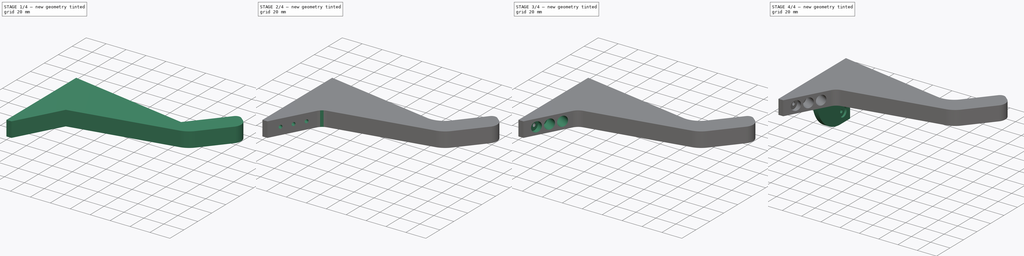
[diagram: build sequence overview — one tinted view per stage of 4, left to right]
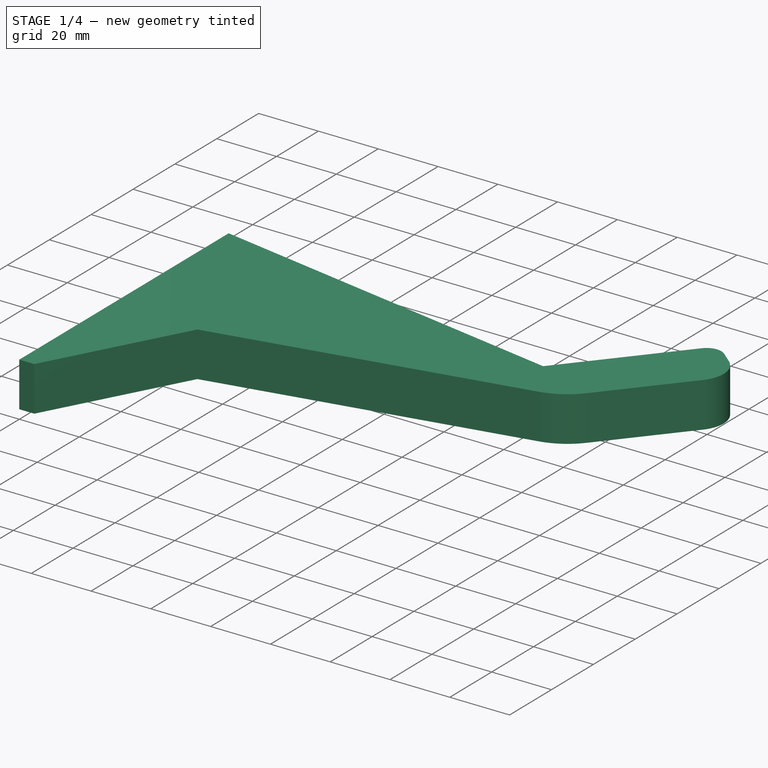
[diagram: stage 1 of 4 — iso view after this stage's code; geometry added in this stage tinted green]
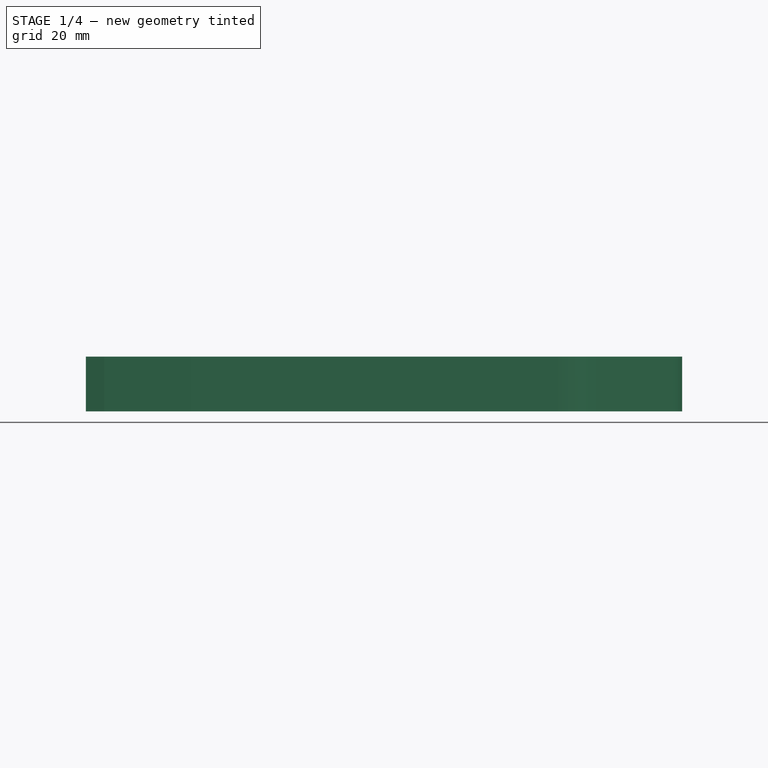
[diagram: stage 1 of 4 — front view after this stage's code; geometry added in this stage tinted green]
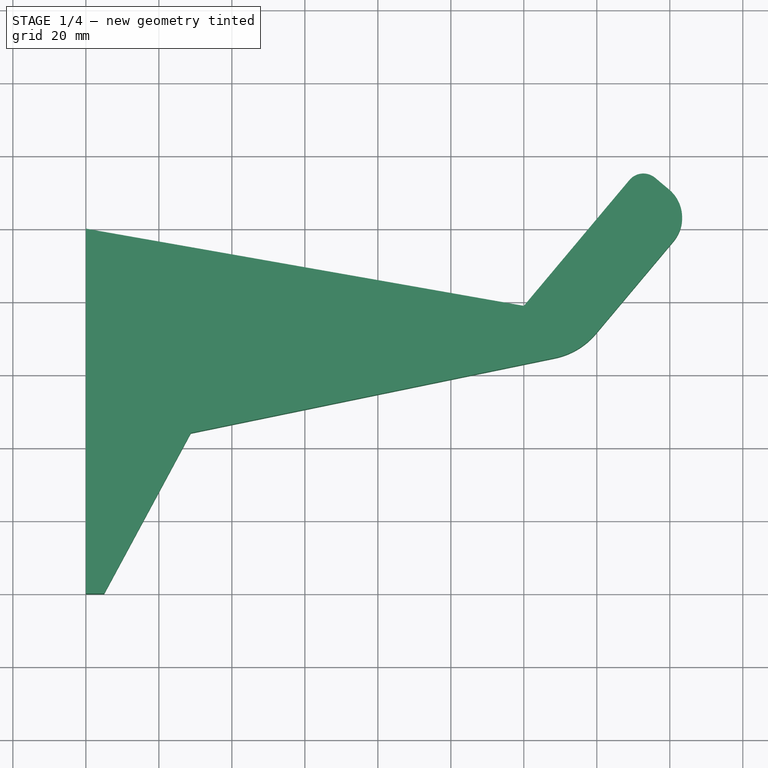
[diagram: stage 1 of 4 — top view after this stage's code; geometry added in this stage tinted green]
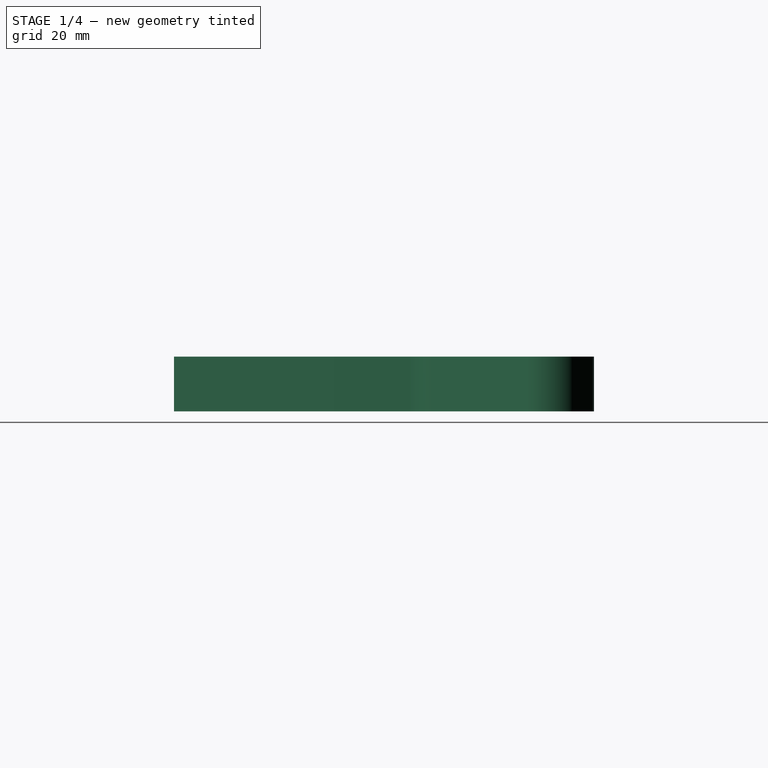
[diagram: stage 1 of 4 — right view after this stage's code; geometry added in this stage tinted green]
FCSTD DOCUMENT  (FreeCAD 0.22R38261 (Git))
Label: кронштейн для минкоты
License: All rights reserved
LicenseURL: https://en.wikipedia.org/wiki/All_rights_reserved
objects: Sketcher::SketchObject×8, PartDesign::Fillet×6, PartDesign::Pocket×6, PartDesign::Plane×4, PartDesign::Pad×2, PartDesign::Body×1, App::Part×1
note: 55 computed .brp shape members not serialized (recipe doc carries the construction recipe); baked Part::Feature solids carry a one-line shape summary decoded from their .brp

FEATURE [Sketcher::SketchObject] Sketch
  AttachmentSupport = -> [XY_Plane001]
  FullyConstrained = true
  MapMode = 5
  sketch-geometry (8):
    g0: LineSegment StartX=0 StartY=0 StartZ=0 EndX=0 EndY=100 EndZ=0
    g1: LineSegment StartX=0 StartY=100 StartZ=0 EndX=120 EndY=78.8408 EndZ=0
    g2: LineSegment StartX=0 StartY=0 StartZ=0 EndX=5 EndY=0 EndZ=0
    g3: LineSegment StartX=152.139 StartY=117.143 StartZ=0 EndX=120 EndY=78.8408 EndZ=0
    g4: LineSegment StartX=5 StartY=0 StartZ=0 EndX=28.7405 EndY=44.0044 EndZ=0
    g5: LineSegment StartX=152.139 StartY=117.143 StartZ=0 EndX=167.46 EndY=104.287 EndZ=0
    g6: LineSegment StartX=167.46 StartY=104.287 StartZ=0 EndX=135.321 EndY=65.985 EndZ=0
    g7: LineSegment StartX=135.321 StartY=65.985 StartZ=0 EndX=28.7405 EndY=44.0044 EndZ=0
  constraints (23):
    c: Coincident(g0,g-1)
    c: PointOnObject(g0,g-2)
    c: Coincident(g1,g0)
    c: Coincident(g2,g0)
    c: PointOnObject(g2,g-1)
    c: Coincident(g1,g3)
    c: DistanceX(g1,g1) = 120
    c: DistanceY(g0,g0) = 100
    c: DistanceX(g2,g2) = 5
    c: Coincident(g4,g2)
    c: Distance(g3) = 50
    c: Coincident(g5,g3)
    c: Distance(g5) = 20
    c: Coincident(g6,g5)
    c: Coincident(g7,g6)
    c: Coincident(g7,g4)
    c: Distance(g1,g6) = 20
    c: Angle(g3,g1) = 2.0944
    c: Perpendicular(g3,g5)
    c: Perpendicular(g5,g6)
    c: Angle(g4,g7,g4) = 2.26893
    c: Distance(g4) = 50
    c: Angle(g0,g1) = 1.39626
FEATURE [PartDesign::Pad] Pad
  Direction = (0,0,1)
  Length = 15
  Length2 = 10
  Profile = -> Sketch
  ReferenceAxis = -> Sketch [N_Axis]
  Suppressed = false
  Type = 0
FEATURE [PartDesign::Fillet] Fillet
  Base = -> Pad [Edge11]
  BaseFeature = -> Pad
  Radius = 10
  SupportTransform = false
  Suppressed = false
  UseAllEdges = false
FEATURE [PartDesign::Fillet] Fillet001
  Base = -> Fillet [Edge3]
  BaseFeature = -> Fillet
  Radius = 5
  SupportTransform = false
  Suppressed = false
  UseAllEdges = false
FEATURE [PartDesign::Fillet] Fillet002
  Base = -> Fillet001 [Edge26]
  BaseFeature = -> Fillet001
  Radius = 20
  SupportTransform = false
  Suppressed = false
  UseAllEdges = false
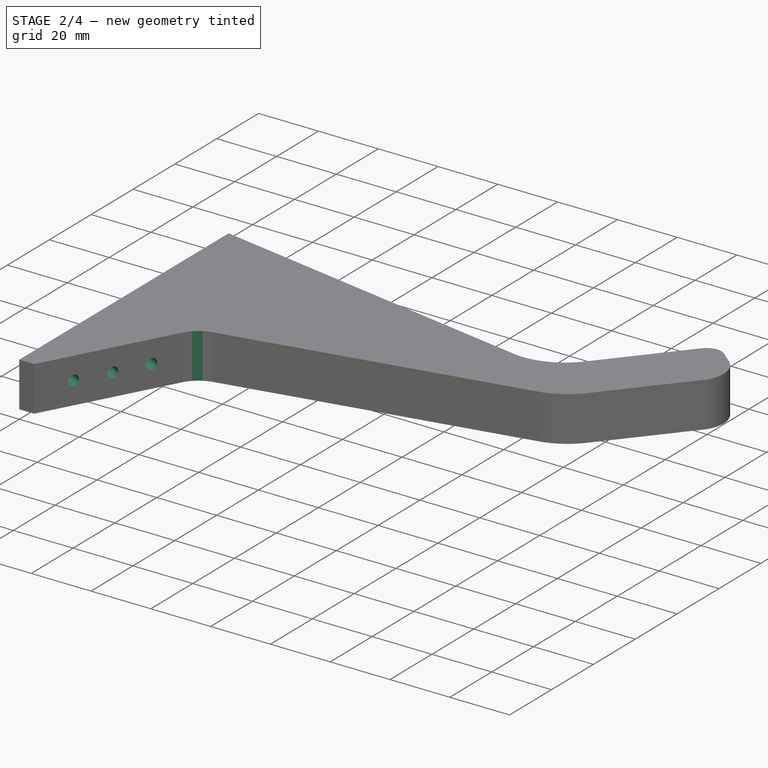
[diagram: stage 2 of 4 — iso view after this stage's code; geometry added in this stage tinted green]
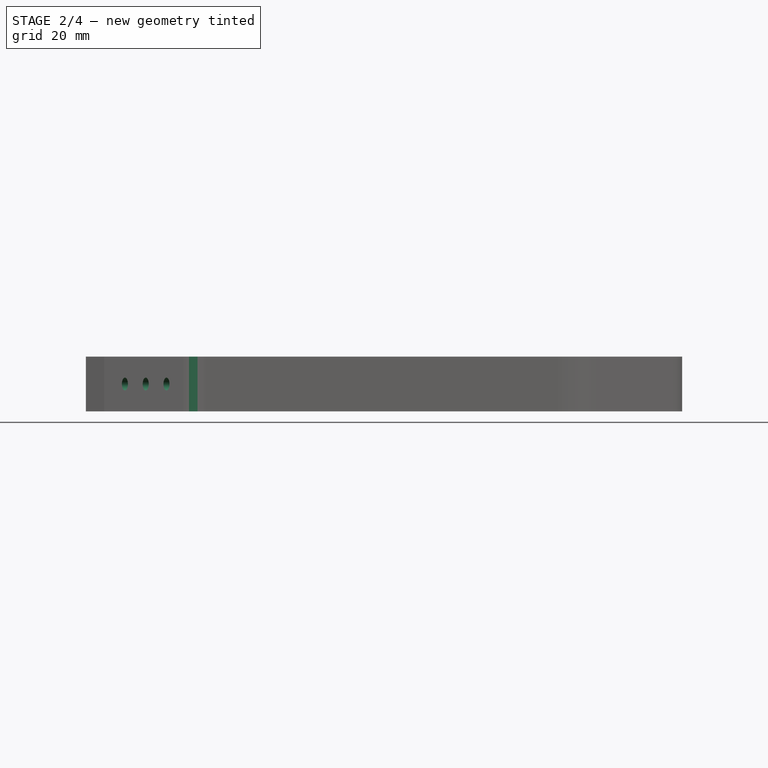
[diagram: stage 2 of 4 — front view after this stage's code; geometry added in this stage tinted green]
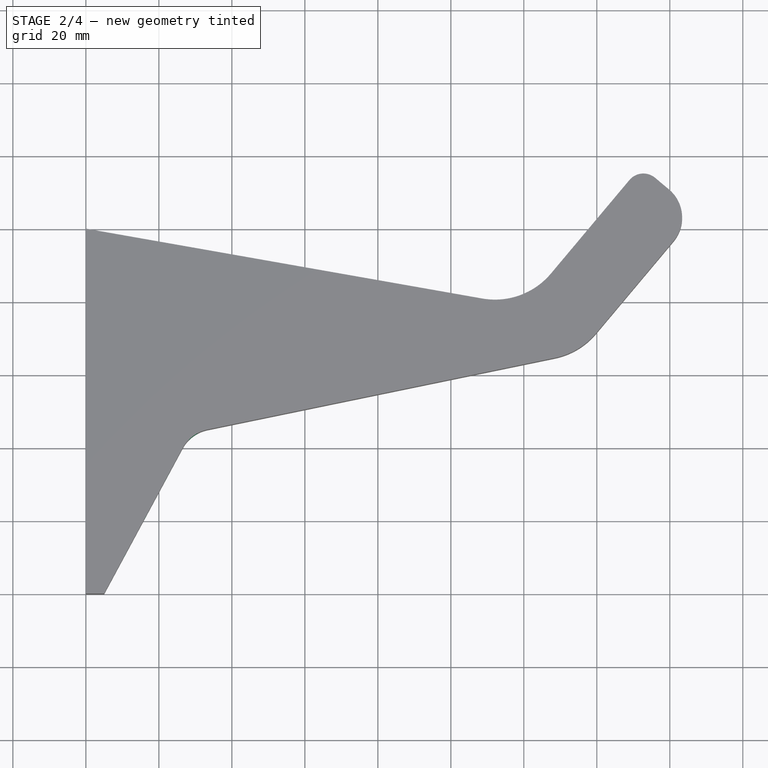
[diagram: stage 2 of 4 — top view after this stage's code; geometry added in this stage tinted green]
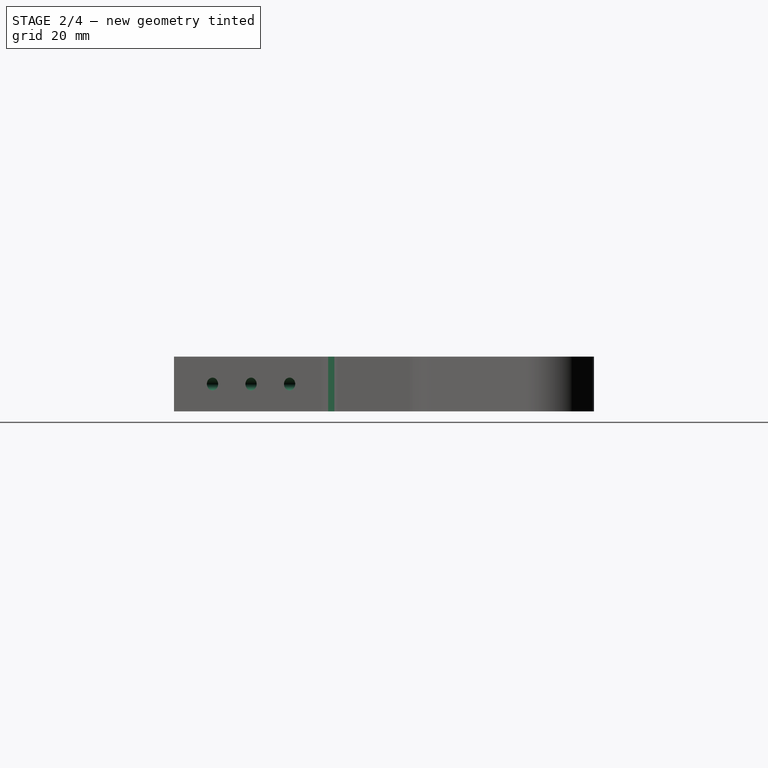
[diagram: stage 2 of 4 — right view after this stage's code; geometry added in this stage tinted green]
FEATURE [PartDesign::Fillet] Fillet003
  Base = -> Fillet002 [Edge29]
  BaseFeature = -> Fillet002
  Radius = 20
  SupportTransform = false
  Suppressed = false
  UseAllEdges = false
FEATURE [PartDesign::Fillet] Fillet004
  Base = -> Fillet003 [Edge32]
  BaseFeature = -> Fillet003
  Radius = 10
  SupportTransform = false
  Suppressed = false
  UseAllEdges = false
FEATURE [PartDesign::Plane] DatumPlane
  AttachmentSupport = -> [Fillet004]
  Length = 236.256
  MapMode = 5
  Placement = pos=(3.87278,-2.08937,0) rot=(0.764225,0.456049,0.456049;1.83651rad)
  ResizeMode = 0
  Width = 88.5184
FEATURE [Sketcher::SketchObject] Sketch001
  AttachmentSupport = -> [DatumPlane]
  ExternalGeometry = -> [Fillet004]
  FullyConstrained = true
  MapMode = 5
  Placement = pos=(3.87278,-2.08937,0) rot=(0.764225,0.456049,0.456049;1.83651rad)
  sketch-geometry (4):
    g0: LineSegment StartX=2.37405 StartY=7.5 StartZ=0 EndX=50 EndY=7.5 EndZ=0
    g1: Circle CenterX=26.374 CenterY=7.5 CenterZ=0 NormalX=0 NormalY=0 NormalZ=1 AngleXU=0 Radius=1.75
    g2: Circle CenterX=38.374 CenterY=7.5 CenterZ=0 NormalX=0 NormalY=0 NormalZ=1 AngleXU=0 Radius=1.75
    g3: Circle CenterX=14.374 CenterY=7.5 CenterZ=0 NormalX=0 NormalY=0 NormalZ=1 AngleXU=0 Radius=1.75
  constraints (12):
    c: Horizontal(g0)
    c: Symmetric(g-3,g-4,g0)
    c: PointOnObject(g1,g0)
    c: Diameter(g1) = 3.5
    c: Diameter(g2) = 3.5
    c: Diameter(g3) = 3.5
    c: PointOnObject(g3,g0)
    c: PointOnObject(g2,g0)
    c: DistanceX(g0,g3) = 12
    c: DistanceX(g3,g1) = 12
    c: DistanceX(g1,g2) = 12
    c: DistanceX(g0) = 50
FEATURE [PartDesign::Pocket] Pocket  label="Дырка под три самореза"
  BaseFeature = -> Fillet004
  Direction = (-0.880088,0.47481,0)
  Length = 5
  Length2 = 5
  Profile = -> Sketch001
  ReferenceAxis = -> Sketch001 [N_Axis]
  Suppressed = false
  Type = 1
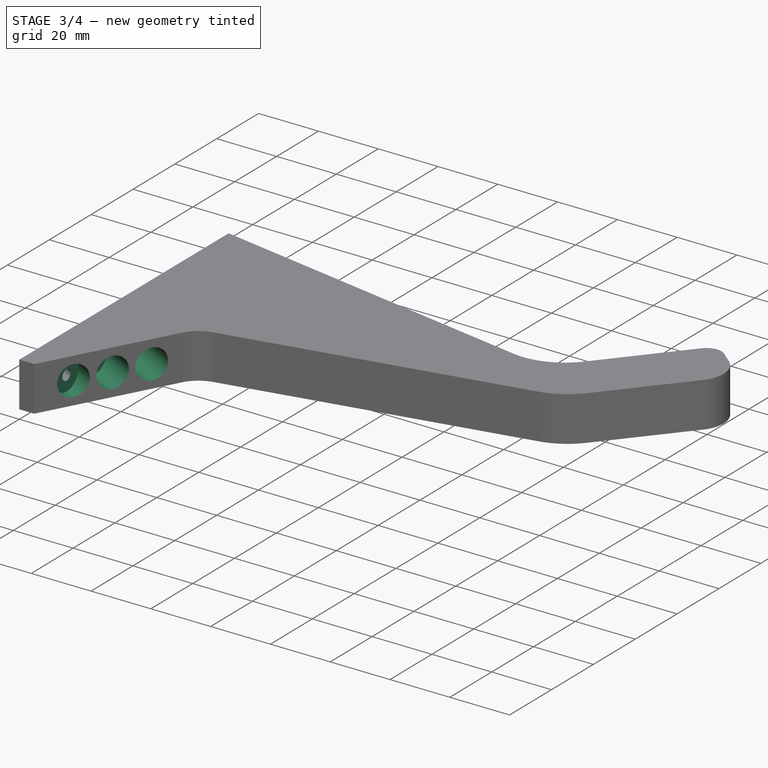
[diagram: stage 3 of 4 — iso view after this stage's code; geometry added in this stage tinted green]
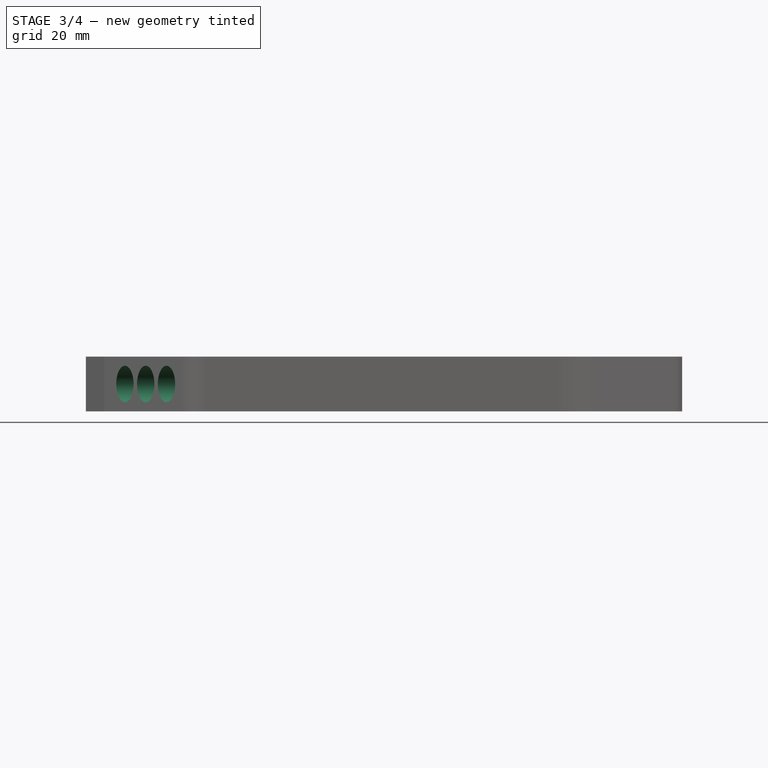
[diagram: stage 3 of 4 — front view after this stage's code; geometry added in this stage tinted green]
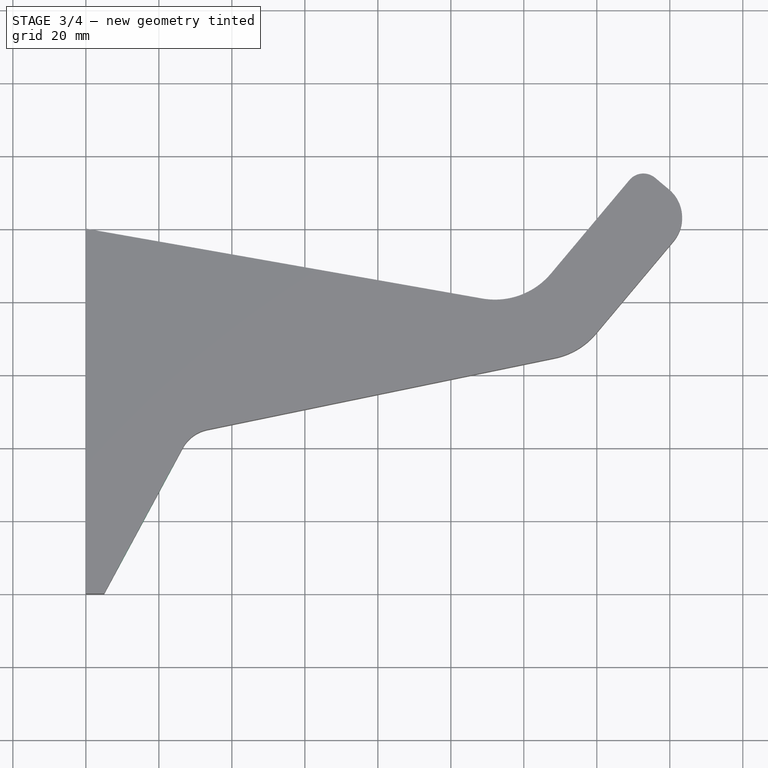
[diagram: stage 3 of 4 — top view after this stage's code; geometry added in this stage tinted green]
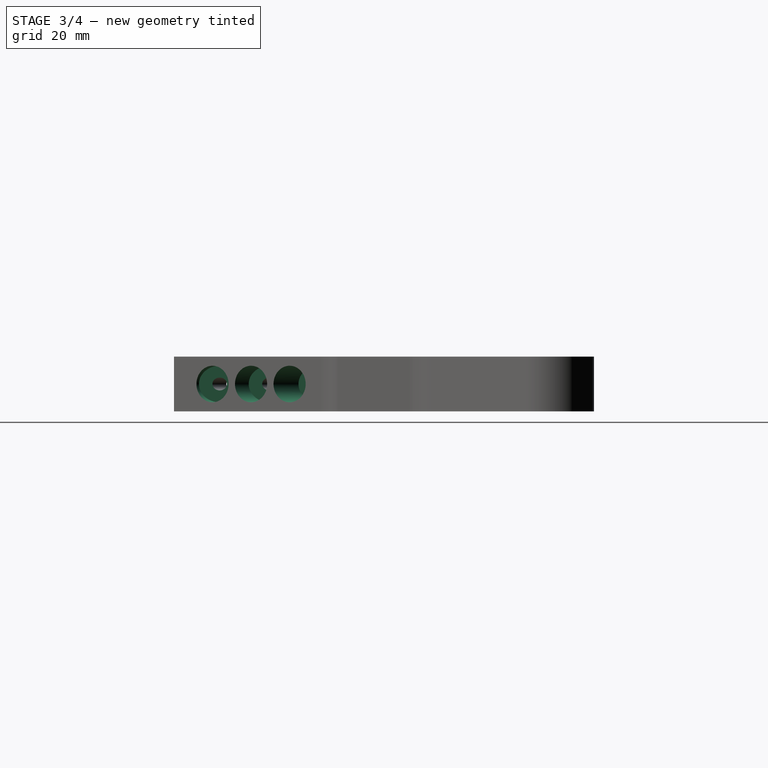
[diagram: stage 3 of 4 — right view after this stage's code; geometry added in this stage tinted green]
FEATURE [Sketcher::SketchObject] Sketch002
  AttachmentSupport = -> [DatumPlane]
  ExternalGeometry = -> [Pocket]
  FullyConstrained = true
  MapMode = 5
  Placement = pos=(3.87278,-2.08937,0) rot=(0.764225,0.456049,0.456049;1.83651rad)
  sketch-geometry (3):
    g0: Circle CenterX=14.374 CenterY=7.5 CenterZ=0 NormalX=0 NormalY=0 NormalZ=1 AngleXU=0 Radius=5
    g1: Circle CenterX=26.374 CenterY=7.5 CenterZ=0 NormalX=0 NormalY=0 NormalZ=1 AngleXU=0 Radius=5
    g2: Circle CenterX=38.374 CenterY=7.5 CenterZ=0 NormalX=0 NormalY=0 NormalZ=1 AngleXU=0 Radius=5
  constraints (6):
    c: Coincident(g0,g-3)
    c: Coincident(g1,g-4)
    c: Coincident(g2,g-5)
    c: Diameter(g0) = 10
    c: Equal(g0,g1)
    c: Equal(g0,g2)
FEATURE [PartDesign::Pocket] Pocket001  label="Зенковка трех"
  BaseFeature = -> Pocket
  Direction = (-0.880088,0.47481,0)
  Length = 0
  Length2 = 5
  Offset = 8
  Profile = -> Sketch002
  ReferenceAxis = -> Sketch002 [N_Axis]
  Suppressed = false
  Type = 3
  UpToFace = -> Pocket [Face6]
  UpToShape = -> [Pocket]
FEATURE [PartDesign::Plane] DatumPlane001
  AttachmentOffset = pos=(0,0,0) rot=(0,-1,0;0.785398rad)
  AttachmentSupport = -> [Pocket001]
  Length = 246.873
  MapMode = 5
  Placement = pos=(17.101,96.9846,0) rot=(0.345437,0.663579,0.663579;2.47638rad)
  ResizeMode = 0
  Width = 89.0685
FEATURE [Sketcher::SketchObject] Sketch003
  AttachmentSupport = -> [DatumPlane001]
  ExternalGeometry = -> [Pocket001]
  FullyConstrained = true
  MapMode = 5
  Placement = pos=(17.101,96.9846,0) rot=(0.345437,0.663579,0.663579;2.47638rad)
  sketch-geometry (2):
    g0: LineSegment StartX=12.2788 StartY=7.5 StartZ=0 EndX=-87.7212 EndY=7.5 EndZ=0
    g1: Circle CenterX=-7.72122 CenterY=7.5 CenterZ=0 NormalX=0 NormalY=0 NormalZ=1 AngleXU=0 Radius=1.75
  constraints (6):
    c: Horizontal(g0)
    c: DistanceX(g0,g0) = 100
    c: Symmetric(g-3,g-4,g0)
    c: PointOnObject(g1,g0)
    c: Diameter(g1) = 3.5
    c: DistanceX(g1,g0) = 20
FEATURE [Sketcher::SketchObject] Sketch004
  AttachmentSupport = -> [DatumPlane001]
  ExternalGeometry = -> [Sketch003]
  FullyConstrained = true
  MapMode = 5
  Placement = pos=(17.101,96.9846,0) rot=(0.345437,0.663579,0.663579;2.47638rad)
  sketch-geometry (1):
    g0: Circle CenterX=-7.72122 CenterY=7.5 CenterZ=0 NormalX=0 NormalY=0 NormalZ=1 AngleXU=0 Radius=5
  constraints (2):
    c: Coincident(g0,g-3)
    c: Diameter(g0) = 10
FEATURE [PartDesign::Pocket] Pocket002
  BaseFeature = -> Pocket001
  Direction = (-0.819152,-0.573576,1e-16)
  Length = 100
  Length2 = 100
  Profile = -> Sketch003
  ReferenceAxis = -> Sketch003 [N_Axis]
  Suppressed = false
  Type = 4
FEATURE [PartDesign::Pocket] Pocket003
  BaseFeature = -> Pocket002
  Direction = (-0.819152,-0.573576,1e-16)
  Length = 17
  Length2 = 23
  Profile = -> Sketch004
  ReferenceAxis = -> Sketch004 [N_Axis]
  Suppressed = false
  Type = 4
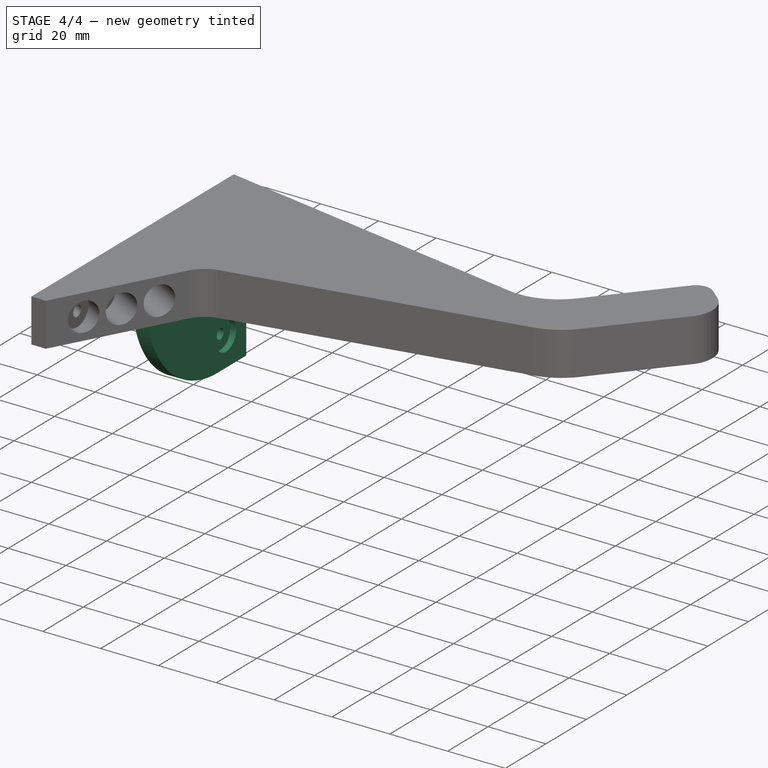
[diagram: stage 4 of 4 — iso view after this stage's code; geometry added in this stage tinted green]
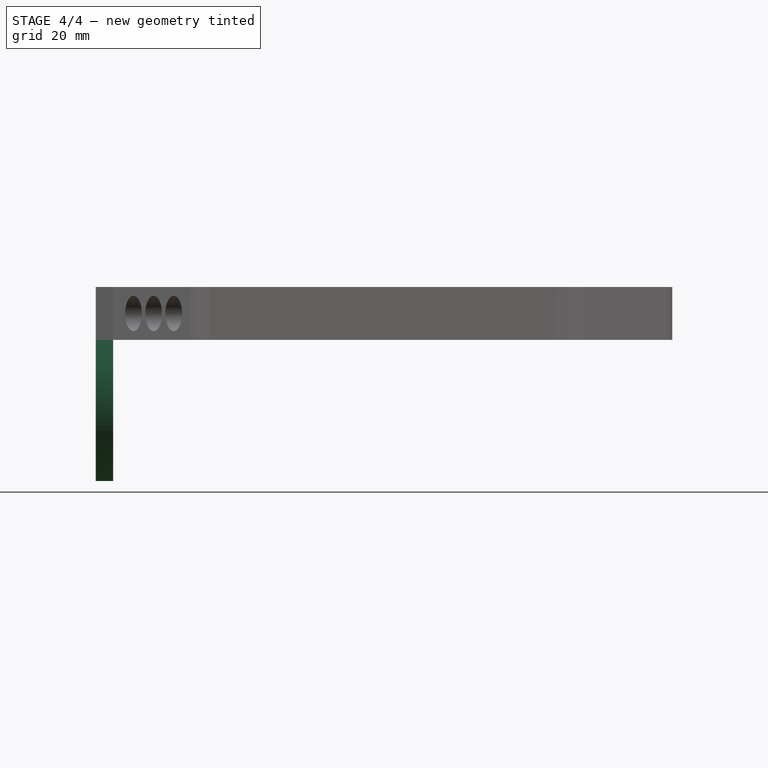
[diagram: stage 4 of 4 — front view after this stage's code; geometry added in this stage tinted green]
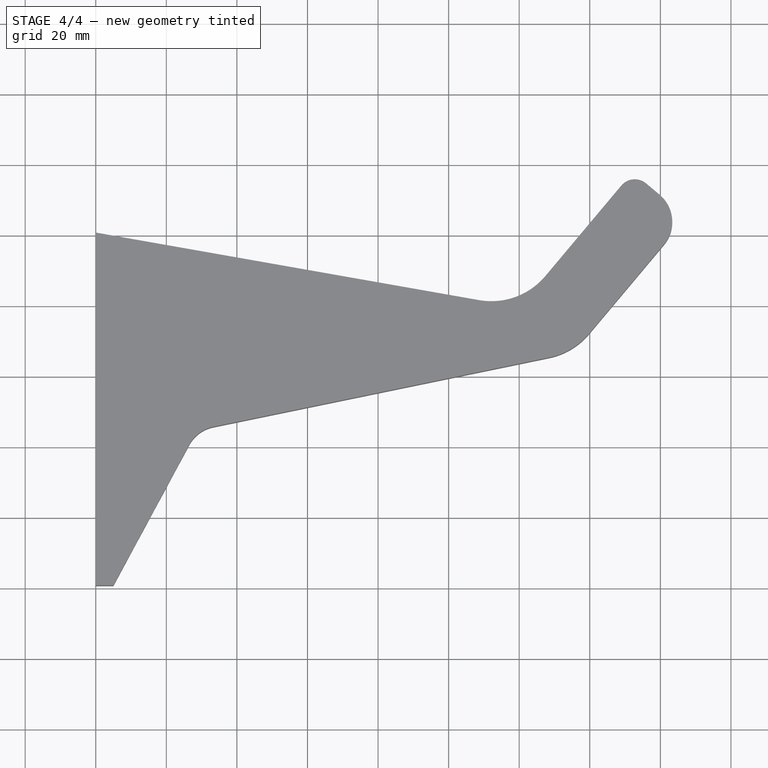
[diagram: stage 4 of 4 — top view after this stage's code; geometry added in this stage tinted green]
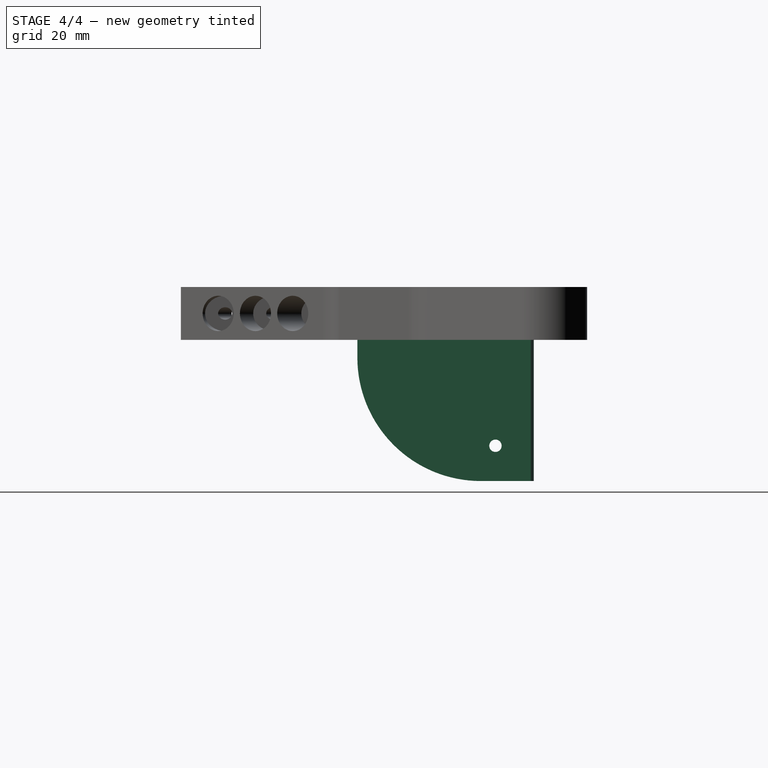
[diagram: stage 4 of 4 — right view after this stage's code; geometry added in this stage tinted green]
FEATURE [PartDesign::Plane] DatumPlane002
  AttachmentSupport = -> [Pocket003]
  Length = 220.859
  MapMode = 5
  Placement = pos=(0,0,0) rot=(1,0,0;3.14159rad)
  ResizeMode = 0
  Width = 172.587
FEATURE [Sketcher::SketchObject] Sketch005
  AttachmentSupport = -> [DatumPlane002]
  ExternalGeometry = -> [Pocket003]
  FullyConstrained = true
  MapMode = 5
  Placement = pos=(0,0,0) rot=(1,0,0;3.14159rad)
  sketch-geometry (4):
    g0: LineSegment StartX=0 StartY=-100 StartZ=0 EndX=0 EndY=-50 EndZ=0
    g1: LineSegment StartX=0 StartY=-50 StartZ=0 EndX=4.92404 EndY=-50 EndZ=0
    g2: LineSegment StartX=4.92404 StartY=-50 StartZ=0 EndX=4.92404 EndY=-99.1318 EndZ=0
    g3: LineSegment StartX=4.92404 StartY=-99.1318 StartZ=0 EndX=0 EndY=-100 EndZ=0
  constraints (11):
    c: Coincident(g0,g-4)
    c: PointOnObject(g0,g-3)
    c: Horizontal(g1)
    c: PointOnObject(g2,g-4)
    c: Vertical(g2)
    c: Coincident(g3,g0)
    c: DistanceY(g0,g0) = 50
    c: Coincident(g1,g0)
    c: Coincident(g1,g2)
    c: Coincident(g2,g3)
    c: Distance(g3) = 5
FEATURE [PartDesign::Pad] Pad001
  BaseFeature = -> Pocket003
  Direction = (0,0,-1)
  Length = 40
  Length2 = 10
  Profile = -> Sketch005
  ReferenceAxis = -> Sketch005 [N_Axis]
  Suppressed = false
  Type = 0
FEATURE [PartDesign::Fillet] Fillet005
  Base = -> Pad001 [Edge33]
  BaseFeature = -> Pad001
  Radius = 35
  SupportTransform = false
  Suppressed = false
  UseAllEdges = false
FEATURE [PartDesign::Plane] DatumPlane003
  AttachmentSupport = -> [Fillet005]
  Length = 159.183
  MapMode = 5
  Placement = pos=(4.92404,0,0) rot=(0.57735,0.57735,0.57735;2.0944rad)
  ResizeMode = 0
  Width = 84.0854
FEATURE [Sketcher::SketchObject] Sketch006
  AttachmentSupport = -> [DatumPlane003]
  ExternalGeometry = -> [Fillet005]
  FullyConstrained = true
  MapMode = 5
  Placement = pos=(4.92404,0,0) rot=(0.57735,0.57735,0.57735;2.0944rad)
  sketch-geometry (1):
    g0: Circle CenterX=89.1318 CenterY=-30 CenterZ=0 NormalX=0 NormalY=0 NormalZ=1 AngleXU=0 Radius=1.75
  constraints (3):
    c: Diameter(g0) = 3.5
    c: DistanceX(g0,g-5) = 10
    c: DistanceY(g-5,g0) = 10
FEATURE [PartDesign::Pocket] Pocket004
  BaseFeature = -> Fillet005
  Direction = (-1,0,0)
  Length = 5
  Length2 = 5
  Profile = -> Sketch006
  ReferenceAxis = -> Sketch006 [N_Axis]
  Suppressed = false
  Type = 1
FEATURE [Sketcher::SketchObject] Sketch007
  AttachmentSupport = -> [DatumPlane003]
  ExternalGeometry = -> [Pocket004]
  FullyConstrained = true
  MapMode = 5
  Placement = pos=(4.92404,0,0) rot=(0.57735,0.57735,0.57735;2.0944rad)
  sketch-geometry (1):
    g0: Circle CenterX=89.1318 CenterY=-30 CenterZ=0 NormalX=0 NormalY=0 NormalZ=1 AngleXU=0 Radius=5
  constraints (2):
    c: Coincident(g0,g-3)
    c: Diameter(g0) = 10
FEATURE [PartDesign::Pocket] Pocket005
  BaseFeature = -> Pocket004
  Direction = (-1,0,0)
  Length = 2
  Length2 = 5
  Profile = -> Sketch007 [Edge1]
  ReferenceAxis = -> Sketch007 [N_Axis]
  Suppressed = false
  Type = 0
FEATURE [PartDesign::Body] Body
  AllowCompound = false
  Group = -> [Sketch,Pad,Fillet,Fillet001,Fillet002,Fillet003,Fillet004,DatumPlane,Sketch001,Pocket,Sketch002,Pocket001,DatumPlane001,Sketch003,Sketch004,Pocket002,Pocket003,DatumPlane002,Sketch005,Pad001,Fillet005,DatumPlane003,Sketch006,Pocket004,Sketch007,Pocket005]
  Origin = -> Origin001
  Tip = -> Pocket005
FEATURE [App::Part] Part
  Group = -> [Body]
  Origin = -> Origin
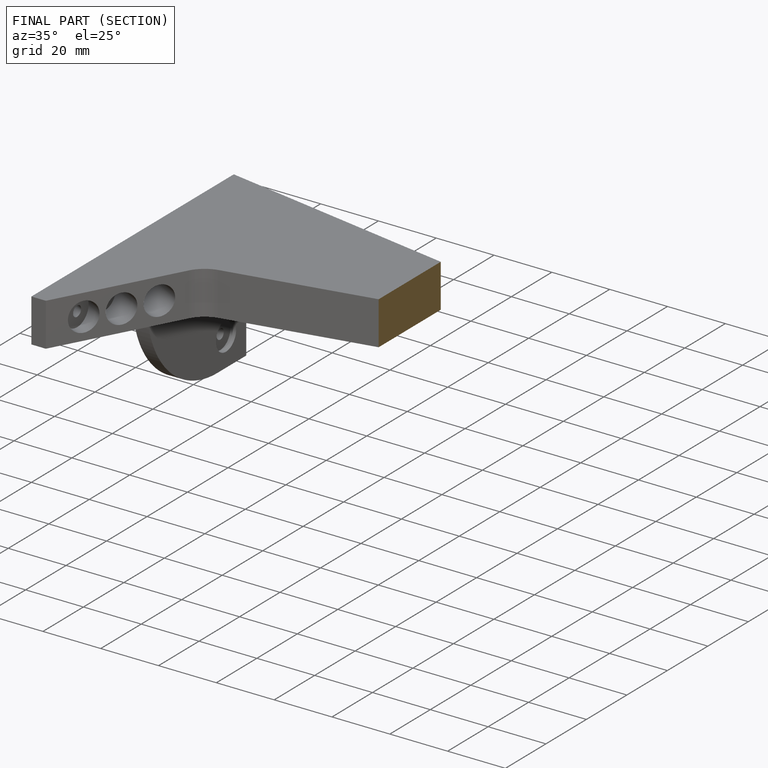
[diagram: finished part — half-section view (interior)]
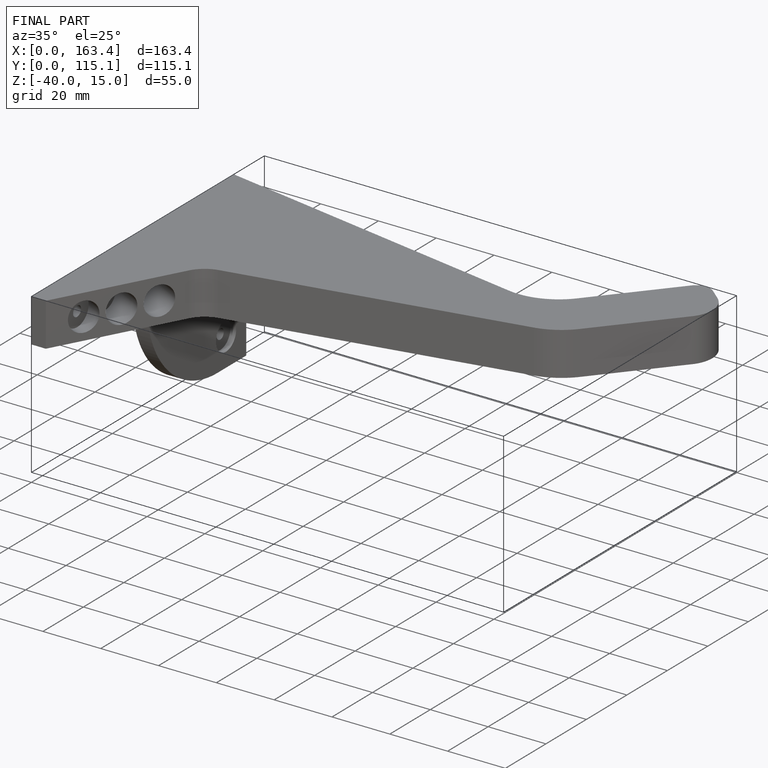
[diagram: finished part — iso view with bounding-box wireframe]
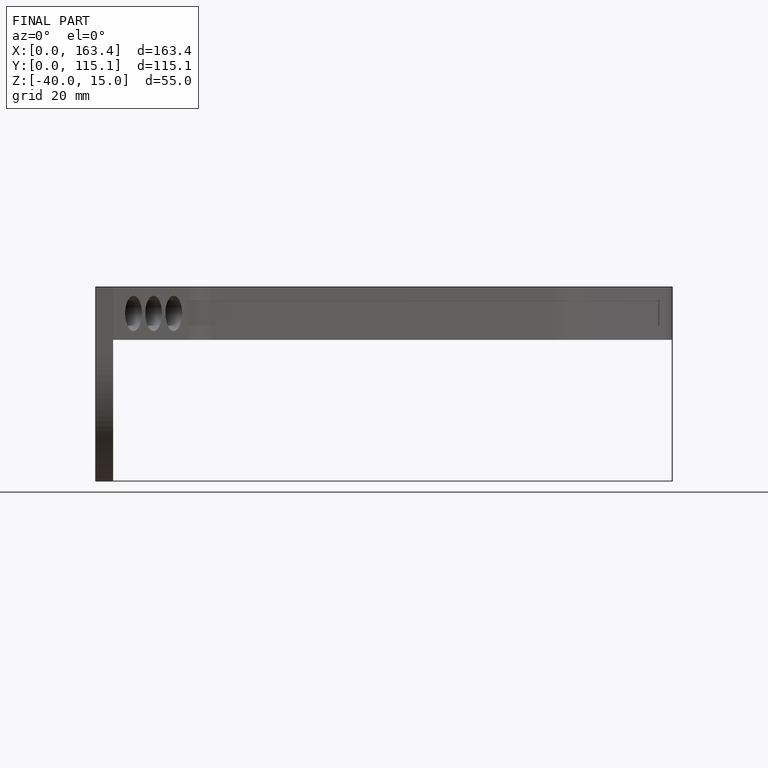
[diagram: finished part — front view with bounding-box wireframe]
